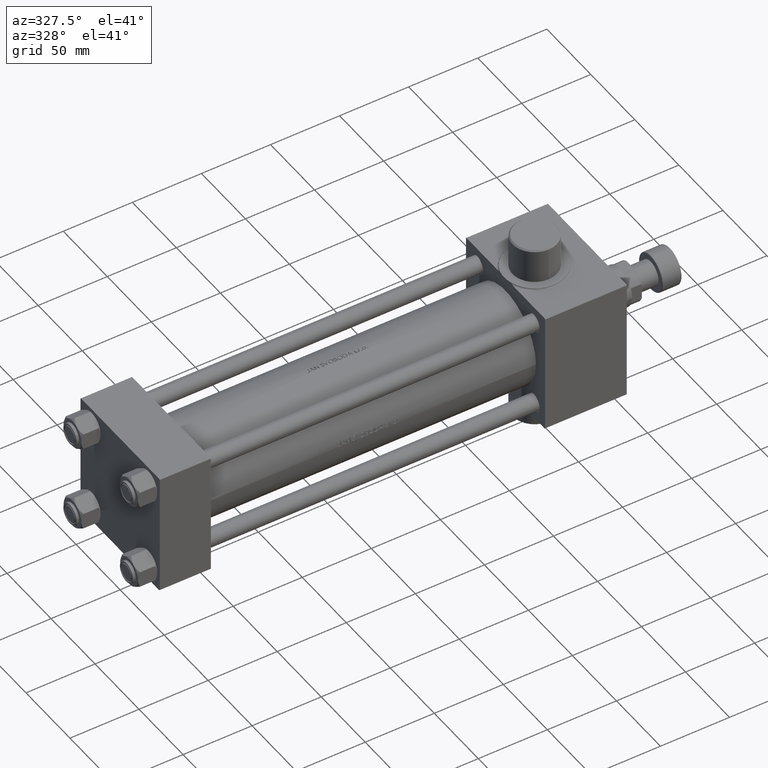
[diagram: clean part render]
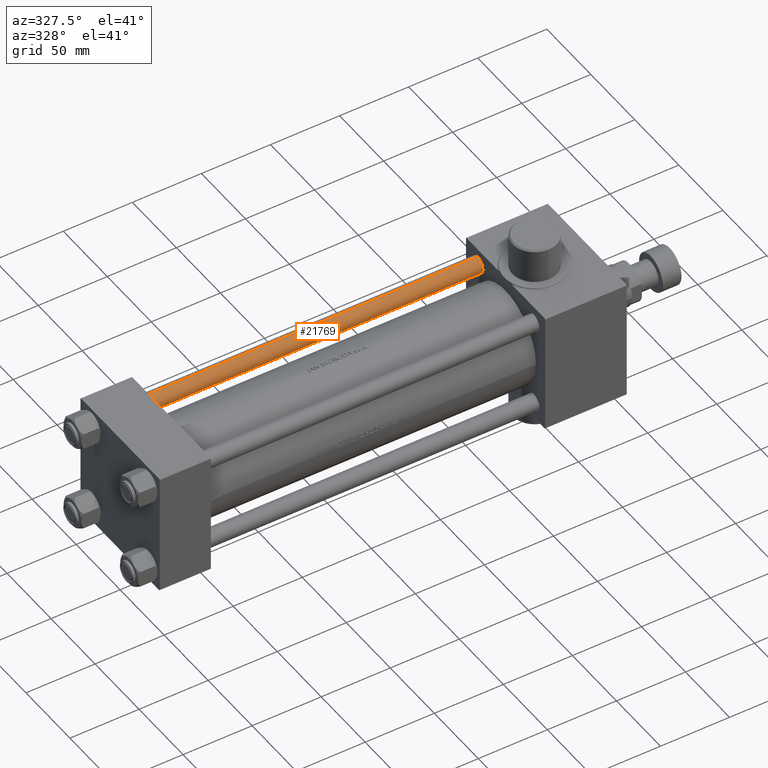
[diagram: same view with one face highlighted and labeled with its STEP entity id]
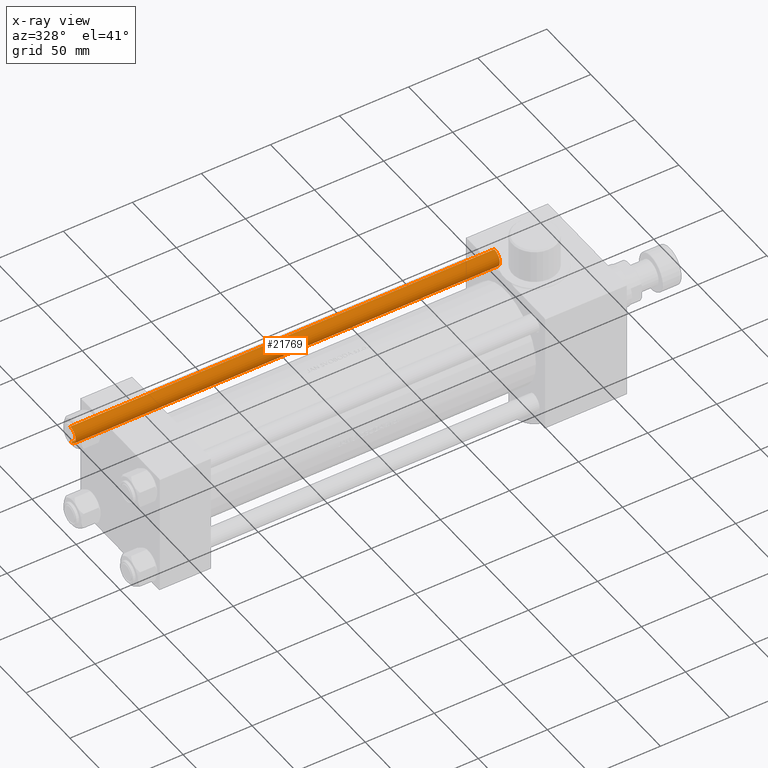
[diagram: x-ray of the same camera — body ghosted, the highlighted face saturated]
A machine part, auxiliary view. The second image highlights one B-rep face of the part: STEP entity #21769.
The next image is the same camera in x-ray: the body ghosted, the highlighted face saturated — about 0% of this face is hidden behind the body in this view.
In plain terms, the highlighted cylindrical surface (edge-blend (fillet) strip) has radius 6 mm, axis along (1, -0, 0).
Its self-contained STEP definition (entity closure, byte-faithful):
#1460 = DIRECTION ( 'NONE',  ( 1.000000000000000000, 0.000000000000000000, 0.000000000000000000 ) ) ;
#1868 = CARTESIAN_POINT ( 'NONE',  ( 6.000000000000000888, 7.347880794884120722E-16, 0.5000000000000559552 ) ) ;
#1895 = VERTEX_POINT ( 'NONE', #36554 ) ;
#3553 = ORIENTED_EDGE ( 'NONE', *, *, #6541, .F. ) ;
#3715 = DIRECTION ( 'NONE',  ( 1.000000000000000000, 0.000000000000000000, 0.000000000000000000 ) ) ;
#6200 = VERTEX_POINT ( 'NONE', #18748 ) ;
#6541 = EDGE_CURVE ( 'NONE', #1895, #8735, #39632, .T. ) ;
#7227 = CYLINDRICAL_SURFACE ( 'NONE', #22205, 6.000000000000000888 ) ;
#7530 = CARTESIAN_POINT ( 'NONE',  ( 0.000000000000000000, 0.000000000000000000, 0.5000000000000559552 ) ) ;
#7677 = CIRCLE ( 'NONE', #12971, 6.000000000000000888 ) ;
#7804 = ORIENTED_EDGE ( 'NONE', *, *, #21020, .T. ) ;
#8735 = VERTEX_POINT ( 'NONE', #1868 ) ;
#10007 = VECTOR ( 'NONE', #22558, 1000.000000000000000 ) ;
#10444 = ORIENTED_EDGE ( 'NONE', *, *, #37269, .T. ) ;
#11328 = CARTESIAN_POINT ( 'NONE',  ( 6.000000000000000888, 7.347880794884120722E-16, 308.0000000000000000 ) ) ;
#11498 = VECTOR ( 'NONE', #32485, 1000.000000000000000 ) ;
#12971 = AXIS2_PLACEMENT_3D ( 'NONE', #7530, #22029, #3715 ) ;
#14603 = DIRECTION ( 'NONE',  ( -1.000000000000000000, 0.000000000000000000, 0.000000000000000000 ) ) ;
#18269 = CARTESIAN_POINT ( 'NONE',  ( -6.000000000000000888, 0.000000000000000000, 308.0000000000000000 ) ) ;
#18748 = CARTESIAN_POINT ( 'NONE',  ( -6.000000000000000888, 0.000000000000000000, 0.5000000000000559552 ) ) ;
#19067 = DIRECTION ( 'NONE',  ( 0.000000000000000000, 0.000000000000000000, -1.000000000000000000 ) ) ;
#21020 = EDGE_CURVE ( 'NONE', #43251, #6200, #21598, .T. ) ;
#21598 = LINE ( 'NONE', #18269, #10007 ) ;
#21769 = ADVANCED_FACE ( 'NONE', ( #39818 ), #7227, .T. ) ;
#22029 = DIRECTION ( 'NONE',  ( -0.000000000000000000, -0.000000000000000000, 1.000000000000000000 ) ) ;
#22205 = AXIS2_PLACEMENT_3D ( 'NONE', #43614, #36260, #14603 ) ;
#22558 = DIRECTION ( 'NONE',  ( -0.000000000000000000, -0.000000000000000000, -1.000000000000000000 ) ) ;
#31038 = CARTESIAN_POINT ( 'NONE',  ( -6.000000000000000888, 0.000000000000000000, 307.4999999999999432 ) ) ;
#32404 = CIRCLE ( 'NONE', #38504, 6.000000000000000888 ) ;
#32485 = DIRECTION ( 'NONE',  ( -0.000000000000000000, -0.000000000000000000, -1.000000000000000000 ) ) ;
#36260 = DIRECTION ( 'NONE',  ( -0.000000000000000000, -0.000000000000000000, -1.000000000000000000 ) ) ;
#36554 = CARTESIAN_POINT ( 'NONE',  ( 6.000000000000000888, 7.347880794884120722E-16, 307.4999999999999432 ) ) ;
#37269 = EDGE_CURVE ( 'NONE', #1895, #43251, #32404, .T. ) ;
#38504 = AXIS2_PLACEMENT_3D ( 'NONE', #44292, #19067, #1460 ) ;
#39632 = LINE ( 'NONE', #11328, #11498 ) ;
#39818 = FACE_OUTER_BOUND ( 'NONE', #40709, .T. ) ;
#40709 = EDGE_LOOP ( 'NONE', ( #3553, #10444, #7804, #42794 ) ) ;
#42794 = ORIENTED_EDGE ( 'NONE', *, *, #44307, .T. ) ;
#43251 = VERTEX_POINT ( 'NONE', #31038 ) ;
#43614 = CARTESIAN_POINT ( 'NONE',  ( 0.000000000000000000, 0.000000000000000000, 308.0000000000000000 ) ) ;
#44292 = CARTESIAN_POINT ( 'NONE',  ( 0.000000000000000000, 0.000000000000000000, 307.4999999999999432 ) ) ;
#44307 = EDGE_CURVE ( 'NONE', #6200, #8735, #7677, .T. ) ;